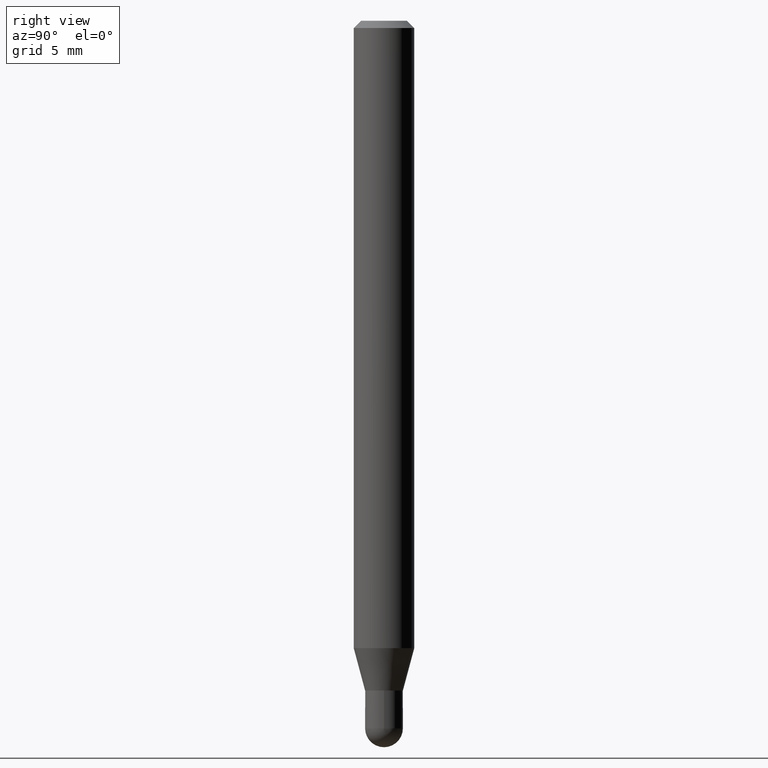
[diagram: clean part render]
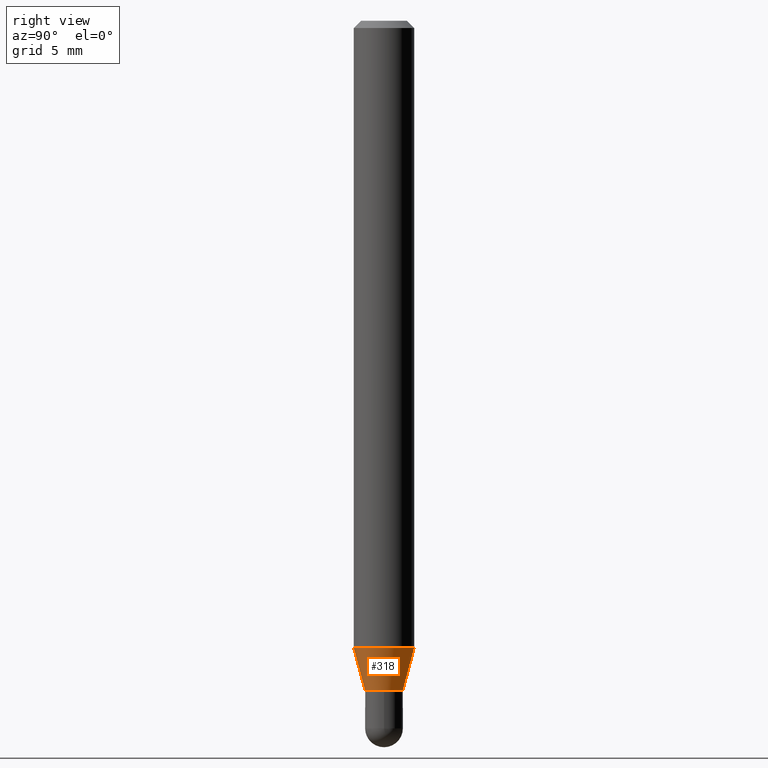
[diagram: same view with one face highlighted and labeled with its STEP entity id]
A machine part, right view. The second image highlights one B-rep face of the part: STEP entity #318.
In plain terms, the highlighted conical surface has half-angle 15 deg.
Its self-contained STEP definition (entity closure, byte-faithful):
#1 = VERTEX_POINT ( 'NONE', #492 ) ;
#19 = CARTESIAN_POINT ( 'NONE',  ( 4.440892098500939734E-16, 0.06249999999999544115, -1.295296806022135261 ) ) ;
#24 = LINE ( 'NONE', #188, #328 ) ;
#27 = EDGE_CURVE ( 'NONE', #1, #325, #257, .T. ) ;
#29 = FACE_OUTER_BOUND ( 'NONE', #281, .T. ) ;
#44 = VERTEX_POINT ( 'NONE', #19 ) ;
#49 = ORIENTED_EDGE ( 'NONE', *, *, #220, .F. ) ;
#62 = AXIS2_PLACEMENT_3D ( 'NONE', #266, #107, #222 ) ;
#83 = DIRECTION ( 'NONE',  ( -1.807323732225382599E-15, -0.2588190451025256800, 0.9659258262890669799 ) ) ;
#107 = DIRECTION ( 'NONE',  ( -2.445438854622252826E-29, 3.491524231185932081E-15, 1.000000000000000000 ) ) ;
#116 = AXIS2_PLACEMENT_3D ( 'NONE', #359, #145, #154 ) ;
#145 = DIRECTION ( 'NONE',  ( -2.445438854622252826E-29, 3.491524231185932081E-15, 1.000000000000000000 ) ) ;
#154 = DIRECTION ( 'NONE',  ( -6.982962677686266711E-15, -1.000000000000000000, 0.000000000000000000 ) ) ;
#174 = VECTOR ( 'NONE', #83, 39.37007874015748143 ) ;
#176 = VERTEX_POINT ( 'NONE', #427 ) ;
#188 = CARTESIAN_POINT ( 'NONE',  ( 2.771116669464742257E-16, 0.03899999999999536476, -1.383000000000000007 ) ) ;
#194 = CARTESIAN_POINT ( 'NONE',  ( 3.606004383982843954E-16, 0.03899999999999536476, -1.383000000000000007 ) ) ;
#197 = LINE ( 'NONE', #399, #174 ) ;
#220 = EDGE_CURVE ( 'NONE', #176, #44, #398, .T. ) ;
#222 = DIRECTION ( 'NONE',  ( -6.982962677686265922E-15, -1.000000000000000000, 4.370956789862821150E-15 ) ) ;
#233 = ORIENTED_EDGE ( 'NONE', *, *, #326, .T. ) ;
#237 = AXIS2_PLACEMENT_3D ( 'NONE', #445, #379, #486 ) ;
#249 = ORIENTED_EDGE ( 'NONE', *, *, #408, .F. ) ;
#257 = CIRCLE ( 'NONE', #237, 0.03900000000000019423 ) ;
#266 = CARTESIAN_POINT ( 'NONE',  ( 3.167569137714632415E-29, -4.522560184804029435E-15, -1.295296806022135039 ) ) ;
#281 = EDGE_LOOP ( 'NONE', ( #448, #233, #49, #249 ) ) ;
#318 = ADVANCED_FACE ( 'NONE', ( #29 ), #499, .T. ) ;
#325 = VERTEX_POINT ( 'NONE', #194 ) ;
#326 = EDGE_CURVE ( 'NONE', #325, #44, #24, .T. ) ;
#328 = VECTOR ( 'NONE', #502, 39.37007874015748143 ) ;
#359 = CARTESIAN_POINT ( 'NONE',  ( 3.382041935942576446E-29, -4.828778011730144635E-15, -1.383000000000000007 ) ) ;
#379 = DIRECTION ( 'NONE',  ( -2.445438854622252826E-29, 3.491524231185932081E-15, 1.000000000000000000 ) ) ;
#398 = CIRCLE ( 'NONE', #62, 0.06250000000000000000 ) ;
#399 = CARTESIAN_POINT ( 'NONE',  ( -2.723355444297319263E-16, -0.03900000000000502370, -1.383000000000000007 ) ) ;
#408 = EDGE_CURVE ( 'NONE', #1, #176, #197, .T. ) ;
#427 = CARTESIAN_POINT ( 'NONE',  ( -4.364351673553602629E-16, -0.06250000000000455191, -1.295296806022134817 ) ) ;
#445 = CARTESIAN_POINT ( 'NONE',  ( 3.382041935942576446E-29, -4.828778011730144635E-15, -1.383000000000000007 ) ) ;
#448 = ORIENTED_EDGE ( 'NONE', *, *, #27, .T. ) ;
#486 = DIRECTION ( 'NONE',  ( -6.982962677686266711E-15, -1.000000000000000000, 0.000000000000000000 ) ) ;
#492 = CARTESIAN_POINT ( 'NONE',  ( -2.723355444297319263E-16, -0.03900000000000502370, -1.383000000000000007 ) ) ;
#499 = CONICAL_SURFACE ( 'NONE', #116, 0.03900000000000019423, 0.2617993877991580121 ) ;
#502 = DIRECTION ( 'NONE',  ( 1.839019923739653563E-15, 0.2588190451025324523, 0.9659258262890650926 ) ) ;